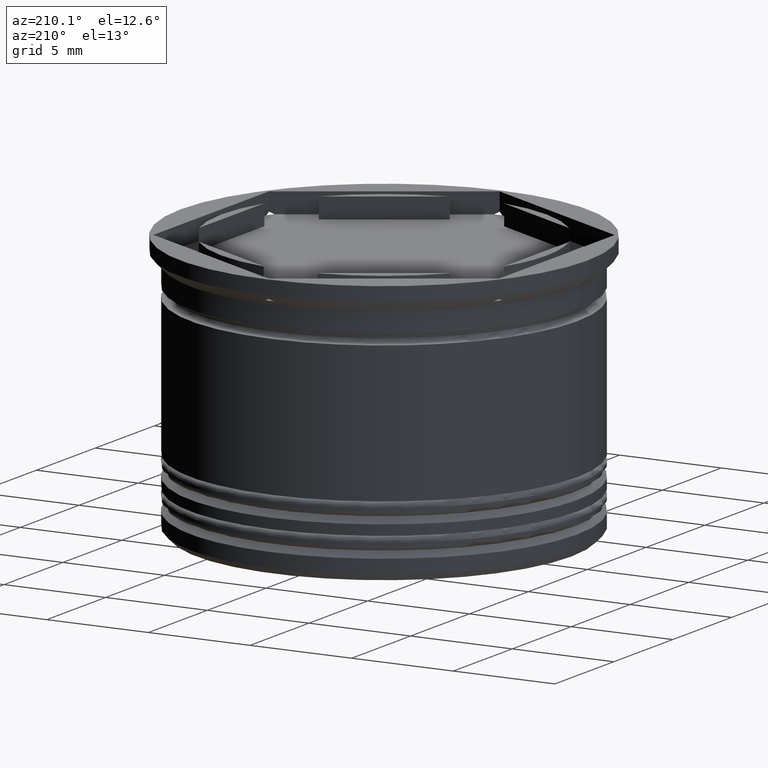
[diagram: clean part render]
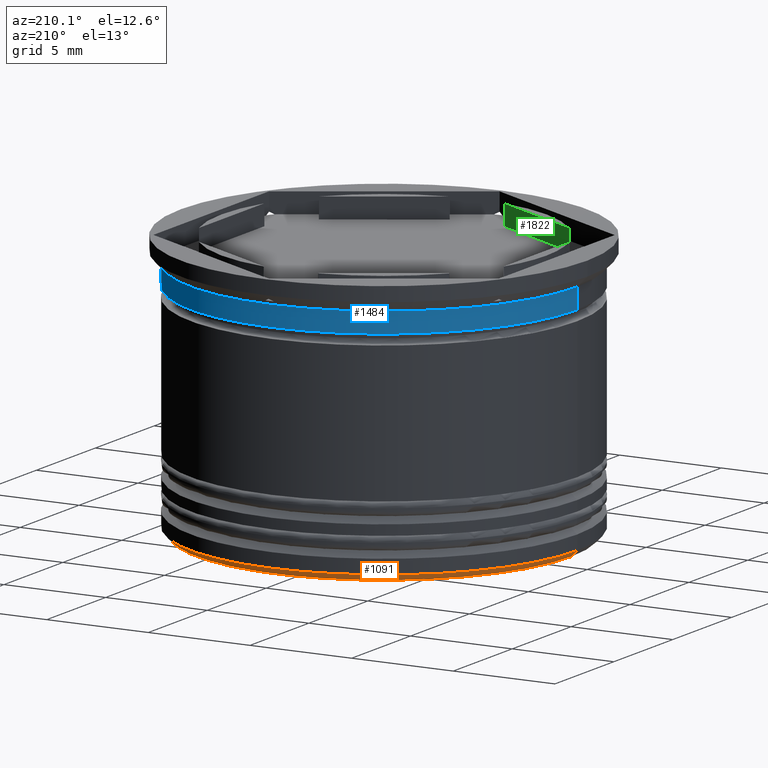
[diagram: same view with three faces highlighted in distinct colors, each labeled with its STEP entity id]
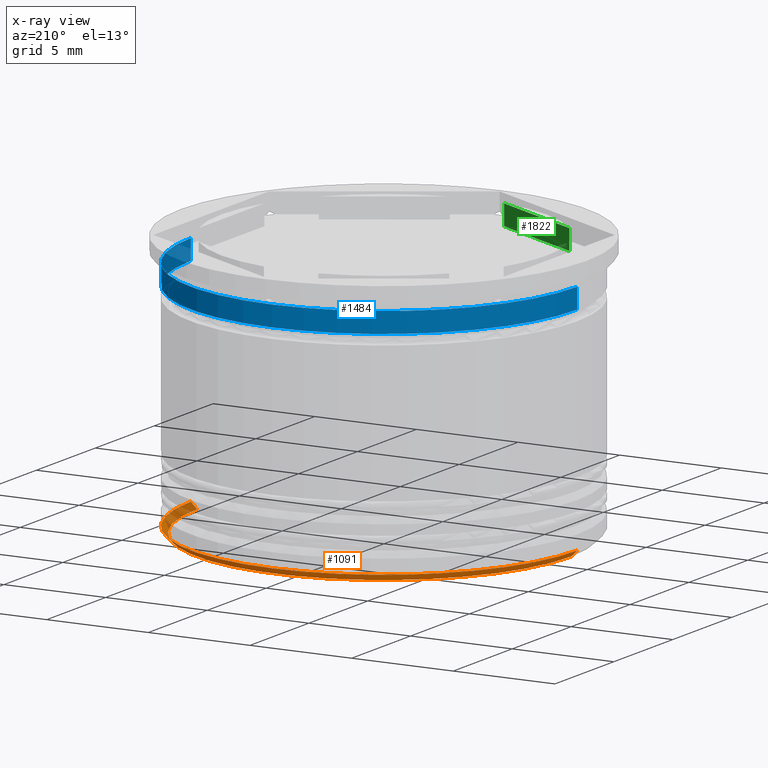
[diagram: x-ray of the same camera — body ghosted, the three highlighted faces saturated]
A machine part, auxiliary view with three faces highlighted in distinct colors.
The next image is the same camera in x-ray (body ghosted, the three faces saturated) — at least one of them is partly hidden behind the body in this view.
Their STEP definitions:

[orange] entity #1091 — the highlighted conical surface has half-angle 45 deg.
#11 = AXIS2_PLACEMENT_3D ( 'NONE', #1961, #454, #1134 ) ;
#18 = CARTESIAN_POINT ( 'NONE',  ( -9.500000000000001776, 1.163414459189985682E-15, -12.70000000000000639 ) ) ;
#68 = ORIENTED_EDGE ( 'NONE', *, *, #1299, .T. ) ;
#158 = CIRCLE ( 'NONE', #359, 9.500000000000001776 ) ;
#262 = DIRECTION ( 'NONE',  ( 0.000000000000000000, 0.000000000000000000, -1.000000000000000000 ) ) ;
#359 = AXIS2_PLACEMENT_3D ( 'NONE', #1302, #457, #1138 ) ;
#454 = DIRECTION ( 'NONE',  ( -0.000000000000000000, -0.000000000000000000, 1.000000000000000000 ) ) ;
#457 = DIRECTION ( 'NONE',  ( -0.000000000000000000, -0.000000000000000000, 1.000000000000000000 ) ) ;
#489 = DIRECTION ( 'NONE',  ( 0.7071067811865474617, 0.000000000000000000, 0.7071067811865474617 ) ) ;
#636 = EDGE_CURVE ( 'NONE', #2042, #736, #158, .T. ) ;
#677 = CIRCLE ( 'NONE', #1181, 9.200000000000006395 ) ;
#736 = VERTEX_POINT ( 'NONE', #18 ) ;
#878 = CARTESIAN_POINT ( 'NONE',  ( 9.500000000000001776, 0.000000000000000000, -12.70000000000000639 ) ) ;
#900 = VERTEX_POINT ( 'NONE', #1197 ) ;
#1004 = VECTOR ( 'NONE', #489, 1000.000000000000114 ) ;
#1025 = EDGE_CURVE ( 'NONE', #900, #2073, #677, .T. ) ;
#1047 = ORIENTED_EDGE ( 'NONE', *, *, #1193, .F. ) ;
#1070 = VECTOR ( 'NONE', #1339, 1000.000000000000114 ) ;
#1091 = ADVANCED_FACE ( 'NONE', ( #1298 ), #2152, .T. ) ;
#1123 = DIRECTION ( 'NONE',  ( -1.000000000000000000, 0.000000000000000000, 0.000000000000000000 ) ) ;
#1134 = DIRECTION ( 'NONE',  ( 1.000000000000000000, 0.000000000000000000, 0.000000000000000000 ) ) ;
#1138 = DIRECTION ( 'NONE',  ( -1.000000000000000000, 0.000000000000000000, 0.000000000000000000 ) ) ;
#1181 = AXIS2_PLACEMENT_3D ( 'NONE', #1589, #262, #1123 ) ;
#1193 = EDGE_CURVE ( 'NONE', #2073, #2042, #1332, .T. ) ;
#1197 = CARTESIAN_POINT ( 'NONE',  ( -9.200000000000006395, 1.145044757202775844E-15, -13.00000000000000178 ) ) ;
#1221 = CARTESIAN_POINT ( 'NONE',  ( 9.200000000000006395, 0.000000000000000000, -13.00000000000000178 ) ) ;
#1298 = FACE_OUTER_BOUND ( 'NONE', #1446, .T. ) ;
#1299 = EDGE_CURVE ( 'NONE', #900, #736, #1833, .T. ) ;
#1302 = CARTESIAN_POINT ( 'NONE',  ( 0.000000000000000000, 0.000000000000000000, -12.70000000000000639 ) ) ;
#1332 = LINE ( 'NONE', #1994, #1004 ) ;
#1339 = DIRECTION ( 'NONE',  ( -0.7071067811865474617, 8.659560562354932858E-17, 0.7071067811865474617 ) ) ;
#1383 = ORIENTED_EDGE ( 'NONE', *, *, #636, .F. ) ;
#1446 = EDGE_LOOP ( 'NONE', ( #1682, #68, #1383, #1047 ) ) ;
#1589 = CARTESIAN_POINT ( 'NONE',  ( 0.000000000000000000, 0.000000000000000000, -13.00000000000000178 ) ) ;
#1677 = CARTESIAN_POINT ( 'NONE',  ( -9.500000000000001776, 1.163414459189985682E-15, -12.70000000000000639 ) ) ;
#1682 = ORIENTED_EDGE ( 'NONE', *, *, #1025, .F. ) ;
#1833 = LINE ( 'NONE', #1677, #1070 ) ;
#1961 = CARTESIAN_POINT ( 'NONE',  ( 0.000000000000000000, 0.000000000000000000, -12.70000000000000639 ) ) ;
#1994 = CARTESIAN_POINT ( 'NONE',  ( 9.500000000000001776, 0.000000000000000000, -12.70000000000000639 ) ) ;
#2042 = VERTEX_POINT ( 'NONE', #878 ) ;
#2073 = VERTEX_POINT ( 'NONE', #1221 ) ;
#2152 = CONICAL_SURFACE ( 'NONE', #11, 9.500000000000001776, 0.7853981633974482790 ) ;

[blue] entity #1484 — the highlighted cylindrical surface (partial cylindrical patch) has radius 9.5 mm, axis along (-0, -0, 1).
#65 = DIRECTION ( 'NONE',  ( 1.000000000000000000, 0.000000000000000000, 0.000000000000000000 ) ) ;
#95 = DIRECTION ( 'NONE',  ( 1.000000000000000000, 0.000000000000000000, 0.000000000000000000 ) ) ;
#114 = ORIENTED_EDGE ( 'NONE', *, *, #2138, .F. ) ;
#134 = EDGE_CURVE ( 'NONE', #1767, #1053, #1872, .T. ) ;
#221 = DIRECTION ( 'NONE',  ( -0.000000000000000000, -0.000000000000000000, 1.000000000000000000 ) ) ;
#251 = EDGE_LOOP ( 'NONE', ( #1260, #567, #1313, #114 ) ) ;
#291 = CARTESIAN_POINT ( 'NONE',  ( -9.499999999999998224, 1.163414459189985288E-15, -2.199999999999999734 ) ) ;
#292 = CARTESIAN_POINT ( 'NONE',  ( -9.499999999999998224, 1.163414459189985288E-15, -1.199999999999999067 ) ) ;
#362 = EDGE_CURVE ( 'NONE', #1717, #1053, #2150, .T. ) ;
#363 = AXIS2_PLACEMENT_3D ( 'NONE', #384, #221, #758 ) ;
#384 = CARTESIAN_POINT ( 'NONE',  ( 0.000000000000000000, 0.000000000000000000, 0.000000000000000000 ) ) ;
#567 = ORIENTED_EDGE ( 'NONE', *, *, #134, .T. ) ;
#645 = CIRCLE ( 'NONE', #1493, 9.499999999999998224 ) ;
#659 = CARTESIAN_POINT ( 'NONE',  ( 9.499999999999998224, 0.000000000000000000, -1.199999999999999067 ) ) ;
#758 = DIRECTION ( 'NONE',  ( 1.000000000000000000, 0.000000000000000000, 0.000000000000000000 ) ) ;
#776 = LINE ( 'NONE', #1100, #1603 ) ;
#779 = DIRECTION ( 'NONE',  ( -0.000000000000000000, -0.000000000000000000, 1.000000000000000000 ) ) ;
#1027 = CARTESIAN_POINT ( 'NONE',  ( -9.499999999999998224, 1.163414459189985288E-15, 0.000000000000000000 ) ) ;
#1053 = VERTEX_POINT ( 'NONE', #292 ) ;
#1100 = CARTESIAN_POINT ( 'NONE',  ( 9.499999999999998224, 0.000000000000000000, 0.000000000000000000 ) ) ;
#1222 = CARTESIAN_POINT ( 'NONE',  ( 0.000000000000000000, 0.000000000000000000, -1.199999999999999067 ) ) ;
#1260 = ORIENTED_EDGE ( 'NONE', *, *, #1509, .T. ) ;
#1269 = CARTESIAN_POINT ( 'NONE',  ( 0.000000000000000000, 0.000000000000000000, -2.199999999999999734 ) ) ;
#1313 = ORIENTED_EDGE ( 'NONE', *, *, #362, .F. ) ;
#1419 = AXIS2_PLACEMENT_3D ( 'NONE', #1222, #1922, #65 ) ;
#1484 = ADVANCED_FACE ( 'NONE', ( #1538 ), #2055, .T. ) ;
#1493 = AXIS2_PLACEMENT_3D ( 'NONE', #1269, #779, #95 ) ;
#1509 = EDGE_CURVE ( 'NONE', #1516, #1767, #645, .T. ) ;
#1516 = VERTEX_POINT ( 'NONE', #2074 ) ;
#1538 = FACE_OUTER_BOUND ( 'NONE', #251, .T. ) ;
#1603 = VECTOR ( 'NONE', #1971, 1000.000000000000000 ) ;
#1717 = VERTEX_POINT ( 'NONE', #659 ) ;
#1765 = VECTOR ( 'NONE', #2044, 1000.000000000000000 ) ;
#1767 = VERTEX_POINT ( 'NONE', #291 ) ;
#1872 = LINE ( 'NONE', #1027, #1765 ) ;
#1922 = DIRECTION ( 'NONE',  ( -0.000000000000000000, -0.000000000000000000, 1.000000000000000000 ) ) ;
#1971 = DIRECTION ( 'NONE',  ( -0.000000000000000000, -0.000000000000000000, 1.000000000000000000 ) ) ;
#2044 = DIRECTION ( 'NONE',  ( -0.000000000000000000, -0.000000000000000000, 1.000000000000000000 ) ) ;
#2055 = CYLINDRICAL_SURFACE ( 'NONE', #363, 9.499999999999998224 ) ;
#2074 = CARTESIAN_POINT ( 'NONE',  ( 9.499999999999998224, 0.000000000000000000, -2.199999999999999734 ) ) ;
#2138 = EDGE_CURVE ( 'NONE', #1516, #1717, #776, .T. ) ;
#2150 = CIRCLE ( 'NONE', #1419, 9.499999999999998224 ) ;

[green] entity #1822 — the highlighted planar face has unit normal (-0.5, -0.866, 0).
#67 = CARTESIAN_POINT ( 'NONE',  ( -6.160912690248238732, -5.103249437675783540, 0.000000000000000000 ) ) ;
#79 = ORIENTED_EDGE ( 'NONE', *, *, #1270, .T. ) ;
#82 = DIRECTION ( 'NONE',  ( -0.5000000000000001110, -0.8660254037844387076, 0.000000000000000000 ) ) ;
#157 = EDGE_CURVE ( 'NONE', #1371, #1662, #1720, .T. ) ;
#306 = LINE ( 'NONE', #1992, #931 ) ;
#332 = CARTESIAN_POINT ( 'NONE',  ( -1.339087309751761712, -7.887131619090794743, 0.000000000000000000 ) ) ;
#431 = FACE_OUTER_BOUND ( 'NONE', #882, .T. ) ;
#442 = ORIENTED_EDGE ( 'NONE', *, *, #888, .T. ) ;
#540 = AXIS2_PLACEMENT_3D ( 'NONE', #773, #82, #1918 ) ;
#641 = CARTESIAN_POINT ( 'NONE',  ( -1.339087309751764154, -7.887131619090796519, -1.000000000000000888 ) ) ;
#662 = CARTESIAN_POINT ( 'NONE',  ( -6.160912690248237844, -5.103249437675787092, -1.000000000000000888 ) ) ;
#773 = CARTESIAN_POINT ( 'NONE',  ( -7.500000000000000888, -4.330127018922191873, -23.91287847477920181 ) ) ;
#882 = EDGE_LOOP ( 'NONE', ( #442, #1268, #79, #1608 ) ) ;
#888 = EDGE_CURVE ( 'NONE', #1515, #1662, #1404, .T. ) ;
#931 = VECTOR ( 'NONE', #2171, 999.9999999999998863 ) ;
#1073 = CARTESIAN_POINT ( 'NONE',  ( -1.339087309751756383, -7.887131619090796519, 22.62741699796951522 ) ) ;
#1075 = VECTOR ( 'NONE', #1306, 1000.000000000000000 ) ;
#1268 = ORIENTED_EDGE ( 'NONE', *, *, #157, .F. ) ;
#1270 = EDGE_CURVE ( 'NONE', #1371, #1882, #306, .T. ) ;
#1277 = VECTOR ( 'NONE', #1530, 1000.000000000000000 ) ;
#1306 = DIRECTION ( 'NONE',  ( -0.000000000000000000, -0.000000000000000000, -1.000000000000000000 ) ) ;
#1371 = VERTEX_POINT ( 'NONE', #641 ) ;
#1372 = CARTESIAN_POINT ( 'NONE',  ( -6.160912690248241397, -5.103249437675779987, 22.62741699796951522 ) ) ;
#1404 = LINE ( 'NONE', #1415, #2011 ) ;
#1415 = CARTESIAN_POINT ( 'NONE',  ( -3.749999999999999112, -6.495190528383288253, 0.000000000000000000 ) ) ;
#1515 = VERTEX_POINT ( 'NONE', #67 ) ;
#1530 = DIRECTION ( 'NONE',  ( 0.000000000000000000, 0.000000000000000000, 1.000000000000000000 ) ) ;
#1608 = ORIENTED_EDGE ( 'NONE', *, *, #1965, .F. ) ;
#1644 = LINE ( 'NONE', #1372, #1075 ) ;
#1662 = VERTEX_POINT ( 'NONE', #332 ) ;
#1720 = LINE ( 'NONE', #1073, #1277 ) ;
#1822 = ADVANCED_FACE ( 'NONE', ( #431 ), #2104, .F. ) ;
#1882 = VERTEX_POINT ( 'NONE', #662 ) ;
#1906 = DIRECTION ( 'NONE',  ( 0.8660254037844387076, -0.5000000000000001110, 0.000000000000000000 ) ) ;
#1918 = DIRECTION ( 'NONE',  ( 0.8660254037844385966, -0.5000000000000000000, 0.000000000000000000 ) ) ;
#1965 = EDGE_CURVE ( 'NONE', #1515, #1882, #1644, .T. ) ;
#1992 = CARTESIAN_POINT ( 'NONE',  ( -7.500000000000000888, -4.330127018922191873, -1.000000000000000888 ) ) ;
#2011 = VECTOR ( 'NONE', #1906, 999.9999999999998863 ) ;
#2104 = PLANE ( 'NONE',  #540 ) ;
#2171 = DIRECTION ( 'NONE',  ( -0.8660254037844387076, 0.5000000000000001110, 0.000000000000000000 ) ) ;